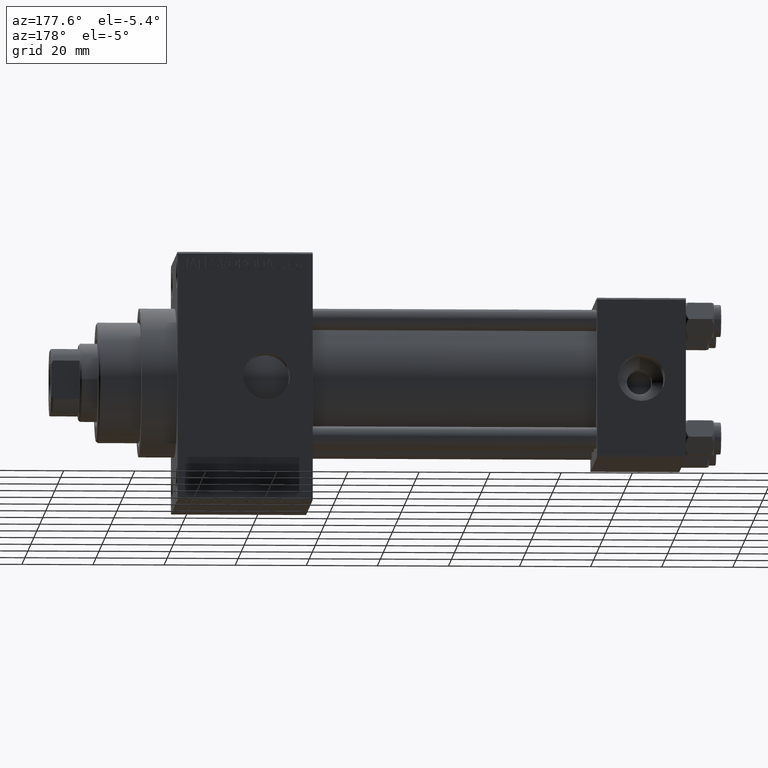
[diagram: clean part render]
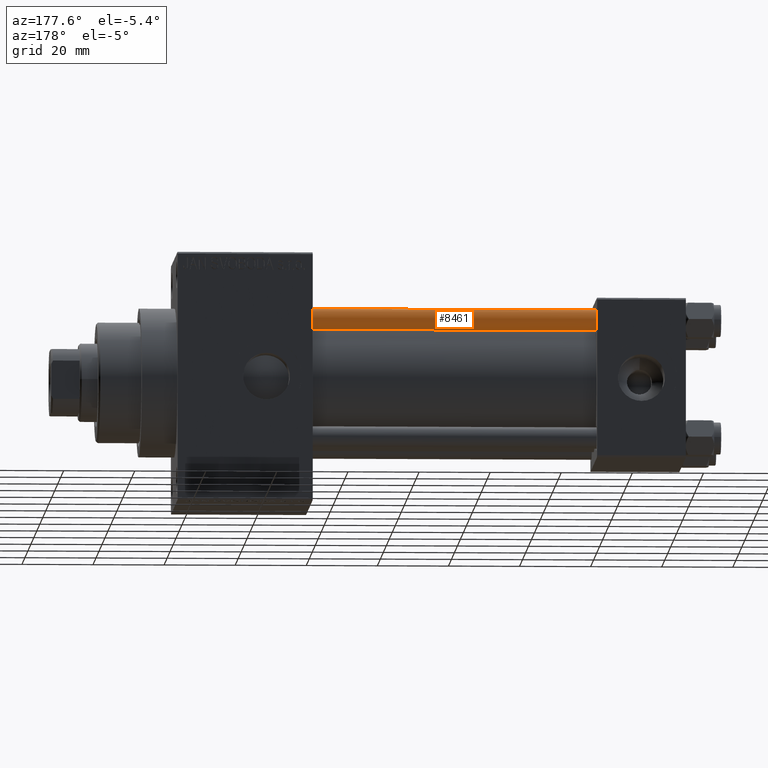
[diagram: same view with one face highlighted and labeled with its STEP entity id]
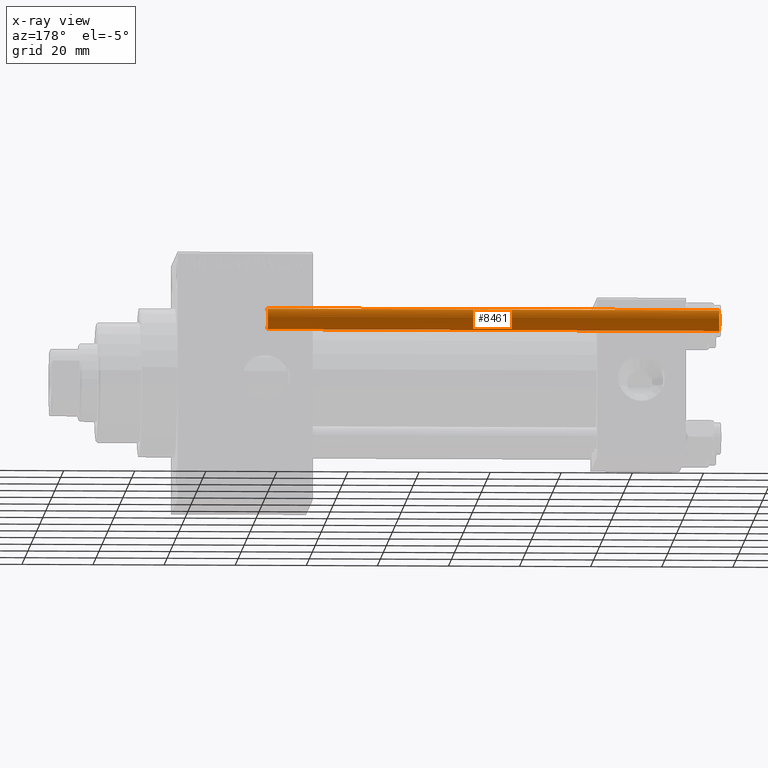
[diagram: x-ray of the same camera — body ghosted, the highlighted face saturated]
A machine part, auxiliary view. The second image highlights one B-rep face of the part: STEP entity #8461.
The next image is the same camera in x-ray: the body ghosted, the highlighted face saturated — about 0% of this face is hidden behind the body in this view.
In plain terms, the highlighted cylindrical surface (edge-blend (fillet) strip) has radius 3 mm, axis along (-1, -0, 0).
Its self-contained STEP definition (entity closure, byte-faithful):
#2131 = VERTEX_POINT ( 'NONE', #7322 ) ;
#3008 = DIRECTION ( 'NONE',  ( -0.000000000000000000, -0.000000000000000000, -1.000000000000000000 ) ) ;
#3789 = LINE ( 'NONE', #33353, #8309 ) ;
#4629 = CARTESIAN_POINT ( 'NONE',  ( -3.000000000000000444, 0.000000000000000000, 127.4999999999999716 ) ) ;
#5003 = CIRCLE ( 'NONE', #45386, 3.000000000000000444 ) ;
#5780 = EDGE_CURVE ( 'NONE', #16932, #6901, #3789, .T. ) ;
#6901 = VERTEX_POINT ( 'NONE', #41225 ) ;
#6931 = CYLINDRICAL_SURFACE ( 'NONE', #32780, 3.000000000000000444 ) ;
#7322 = CARTESIAN_POINT ( 'NONE',  ( 3.000000000000000444, 3.673940397442060361E-16, 127.4999999999999716 ) ) ;
#8309 = VECTOR ( 'NONE', #11416, 1000.000000000000000 ) ;
#8461 = ADVANCED_FACE ( 'NONE', ( #14548 ), #6931, .T. ) ;
#9810 = DIRECTION ( 'NONE',  ( -1.000000000000000000, 0.000000000000000000, 0.000000000000000000 ) ) ;
#10130 = EDGE_CURVE ( 'NONE', #2131, #14780, #21379, .T. ) ;
#11416 = DIRECTION ( 'NONE',  ( -0.000000000000000000, -0.000000000000000000, -1.000000000000000000 ) ) ;
#14548 = FACE_OUTER_BOUND ( 'NONE', #35998, .T. ) ;
#14780 = VERTEX_POINT ( 'NONE', #28274 ) ;
#15497 = ORIENTED_EDGE ( 'NONE', *, *, #30853, .T. ) ;
#16932 = VERTEX_POINT ( 'NONE', #4629 ) ;
#17065 = DIRECTION ( 'NONE',  ( 1.000000000000000000, 0.000000000000000000, 0.000000000000000000 ) ) ;
#18067 = AXIS2_PLACEMENT_3D ( 'NONE', #46172, #31398, #17065 ) ;
#18149 = ORIENTED_EDGE ( 'NONE', *, *, #10130, .T. ) ;
#20675 = CARTESIAN_POINT ( 'NONE',  ( 3.000000000000000444, 3.673940397442060361E-16, 128.0000000000000000 ) ) ;
#21379 = LINE ( 'NONE', #20675, #30522 ) ;
#25633 = DIRECTION ( 'NONE',  ( 1.000000000000000000, 0.000000000000000000, 0.000000000000000000 ) ) ;
#28274 = CARTESIAN_POINT ( 'NONE',  ( 3.000000000000000444, 3.673940397442060361E-16, 0.5000000000000281997 ) ) ;
#30522 = VECTOR ( 'NONE', #3008, 1000.000000000000000 ) ;
#30853 = EDGE_CURVE ( 'NONE', #14780, #6901, #5003, .T. ) ;
#31398 = DIRECTION ( 'NONE',  ( 0.000000000000000000, 0.000000000000000000, -1.000000000000000000 ) ) ;
#31787 = ORIENTED_EDGE ( 'NONE', *, *, #5780, .F. ) ;
#32780 = AXIS2_PLACEMENT_3D ( 'NONE', #46990, #43411, #9810 ) ;
#33242 = CARTESIAN_POINT ( 'NONE',  ( 0.000000000000000000, 0.000000000000000000, 0.5000000000000281997 ) ) ;
#33353 = CARTESIAN_POINT ( 'NONE',  ( -3.000000000000000444, 0.000000000000000000, 128.0000000000000000 ) ) ;
#34414 = EDGE_CURVE ( 'NONE', #16932, #2131, #45494, .T. ) ;
#35998 = EDGE_LOOP ( 'NONE', ( #41024, #18149, #15497, #31787 ) ) ;
#40166 = DIRECTION ( 'NONE',  ( -0.000000000000000000, -0.000000000000000000, 1.000000000000000000 ) ) ;
#41024 = ORIENTED_EDGE ( 'NONE', *, *, #34414, .T. ) ;
#41225 = CARTESIAN_POINT ( 'NONE',  ( -3.000000000000000444, 0.000000000000000000, 0.5000000000000281997 ) ) ;
#43411 = DIRECTION ( 'NONE',  ( -0.000000000000000000, -0.000000000000000000, -1.000000000000000000 ) ) ;
#45386 = AXIS2_PLACEMENT_3D ( 'NONE', #33242, #40166, #25633 ) ;
#45494 = CIRCLE ( 'NONE', #18067, 3.000000000000000444 ) ;
#46172 = CARTESIAN_POINT ( 'NONE',  ( 0.000000000000000000, 0.000000000000000000, 127.4999999999999716 ) ) ;
#46990 = CARTESIAN_POINT ( 'NONE',  ( 0.000000000000000000, 0.000000000000000000, 128.0000000000000000 ) ) ;